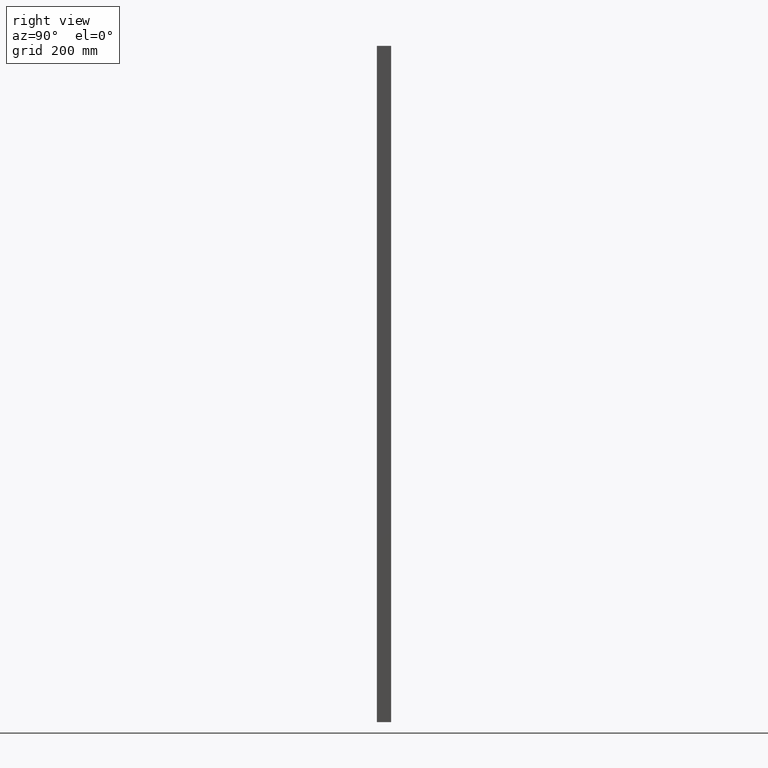
[diagram: clean part render]
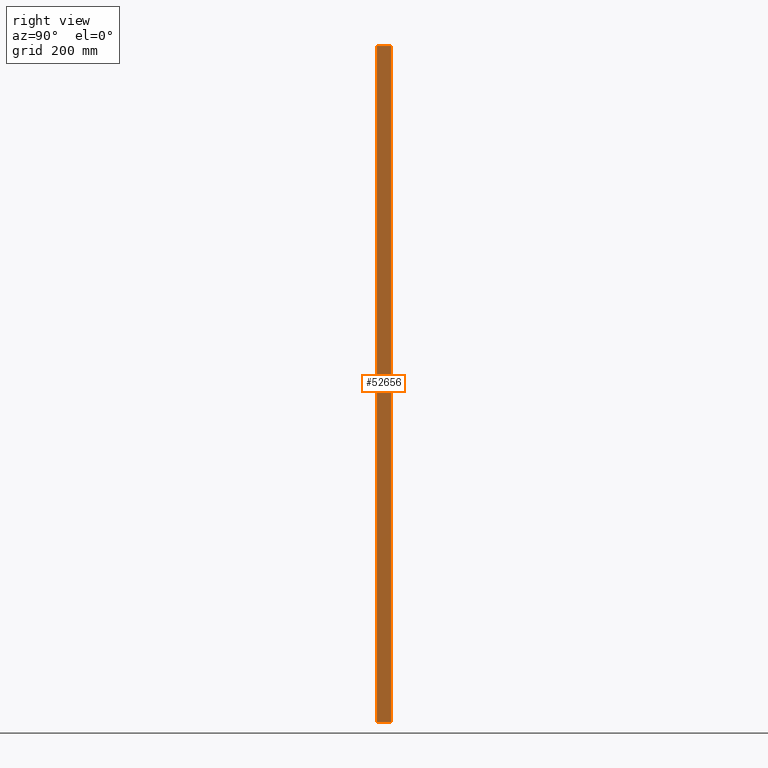
[diagram: same view with one face highlighted and labeled with its STEP entity id]
A machine part, right view. The second image highlights one B-rep face of the part: STEP entity #52656.
In plain terms, the highlighted planar face has unit normal (1, -0, -0).
Its self-contained STEP definition (entity closure, byte-faithful):
#752 = VECTOR ( 'NONE', #72192, 1000.000000000000000 ) ;
#11130 = ORIENTED_EDGE ( 'NONE', *, *, #21797, .T. ) ;
#12797 = DIRECTION ( 'NONE',  ( 1.399440787342634300E-016, 0.0000000000000000000, 1.000000000000000000 ) ) ;
#12810 = CARTESIAN_POINT ( 'NONE',  ( 489.9999999999998900, -12.50000000000000000, -1190.000000000000000 ) ) ;
#13055 = ORIENTED_EDGE ( 'NONE', *, *, #84103, .T. ) ;
#13209 = VERTEX_POINT ( 'NONE', #12810 ) ;
#14504 = VECTOR ( 'NONE', #70593, 1000.000000000000000 ) ;
#14699 = CARTESIAN_POINT ( 'NONE',  ( 489.9999999999999400, 12.49999999999986700, -1190.000000000000000 ) ) ;
#17855 = AXIS2_PLACEMENT_3D ( 'NONE', #45903, #58942, #72278 ) ;
#21797 = EDGE_CURVE ( 'NONE', #13209, #40749, #56327, .T. ) ;
#26661 = LINE ( 'NONE', #64052, #14504 ) ;
#26980 = VECTOR ( 'NONE', #79660, 1000.000000000000000 ) ;
#27364 = CARTESIAN_POINT ( 'NONE',  ( 490.0000000000001100, 12.49999999999950300, -2.220446049250313100E-013 ) ) ;
#29925 = VERTEX_POINT ( 'NONE', #69384 ) ;
#33170 = ORIENTED_EDGE ( 'NONE', *, *, #44699, .F. ) ;
#37733 = CARTESIAN_POINT ( 'NONE',  ( 490.0000000000001100, 12.50000000000000000, 0.0000000000000000000 ) ) ;
#39232 = CARTESIAN_POINT ( 'NONE',  ( 490.0000000000000000, 12.50000000000000000, -1190.000000000000000 ) ) ;
#40749 = VERTEX_POINT ( 'NONE', #75247 ) ;
#42420 = LINE ( 'NONE', #27364, #752 ) ;
#44678 = LINE ( 'NONE', #39232, #79164 ) ;
#44699 = EDGE_CURVE ( 'NONE', #13209, #29925, #26661, .T. ) ;
#45903 = CARTESIAN_POINT ( 'NONE',  ( 489.9999999999999400, 12.49999999999986700, -1190.000000000000000 ) ) ;
#52656 = ADVANCED_FACE ( 'NONE', ( #64869 ), #71981, .T. ) ;
#53679 = ORIENTED_EDGE ( 'NONE', *, *, #76093, .T. ) ;
#56327 = LINE ( 'NONE', #14699, #26980 ) ;
#58942 = DIRECTION ( 'NONE',  ( 1.000000000000000000, -3.061616997868383100E-016, -1.399440787342634300E-016 ) ) ;
#60717 = EDGE_LOOP ( 'NONE', ( #53679, #13055, #33170, #11130 ) ) ;
#64052 = CARTESIAN_POINT ( 'NONE',  ( 489.9999999999998900, -12.50000000000000000, -1190.000000000000000 ) ) ;
#64869 = FACE_OUTER_BOUND ( 'NONE', #60717, .T. ) ;
#69384 = CARTESIAN_POINT ( 'NONE',  ( 490.0000000000001100, -12.50000000000000000, -1.110223024625156500E-013 ) ) ;
#70593 = DIRECTION ( 'NONE',  ( 1.399440787342634300E-016, 0.0000000000000000000, 1.000000000000000000 ) ) ;
#71981 = PLANE ( 'NONE',  #17855 ) ;
#72192 = DIRECTION ( 'NONE',  ( -3.061616997868383600E-016, -1.000000000000000000, -3.061616997868382600E-016 ) ) ;
#72278 = DIRECTION ( 'NONE',  ( 3.061616997868383100E-016, 1.000000000000000000, 0.0000000000000000000 ) ) ;
#74651 = VERTEX_POINT ( 'NONE', #37733 ) ;
#75247 = CARTESIAN_POINT ( 'NONE',  ( 490.0000000000000000, 12.50000000000000000, -1190.000000000000000 ) ) ;
#76093 = EDGE_CURVE ( 'NONE', #40749, #74651, #44678, .T. ) ;
#79164 = VECTOR ( 'NONE', #12797, 1000.000000000000000 ) ;
#79660 = DIRECTION ( 'NONE',  ( 3.061616997868382600E-016, 1.000000000000000000, -3.061616997868383100E-016 ) ) ;
#84103 = EDGE_CURVE ( 'NONE', #74651, #29925, #42420, .T. ) ;